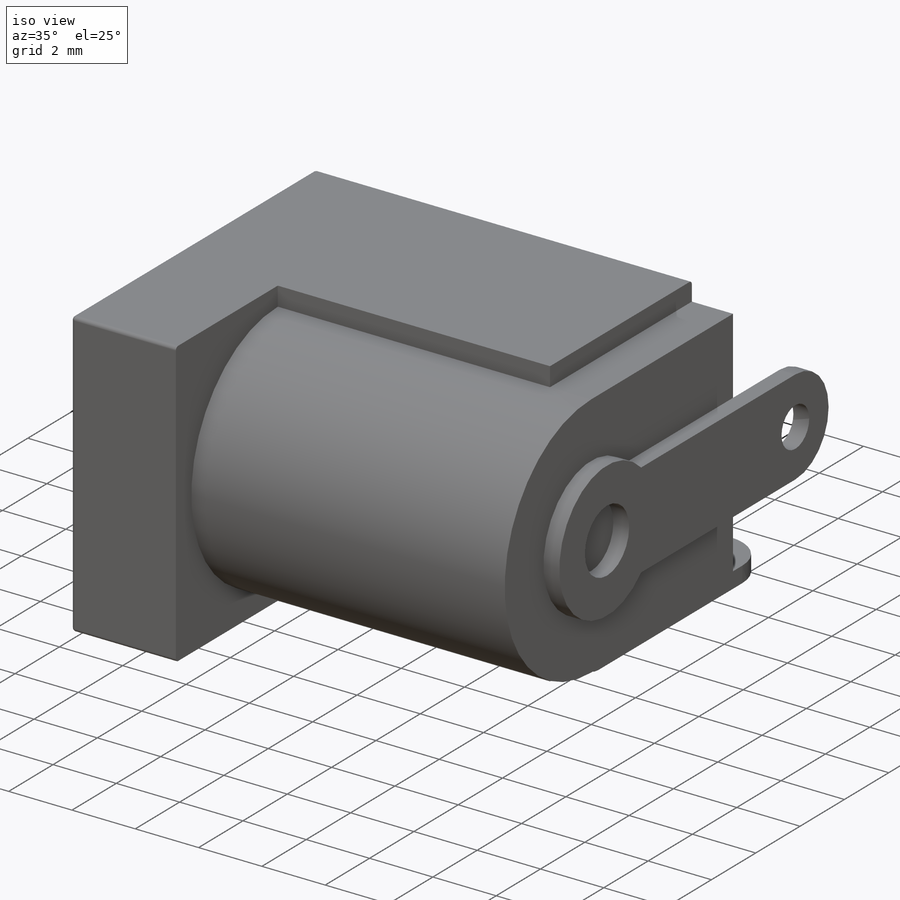
[diagram: iso view]
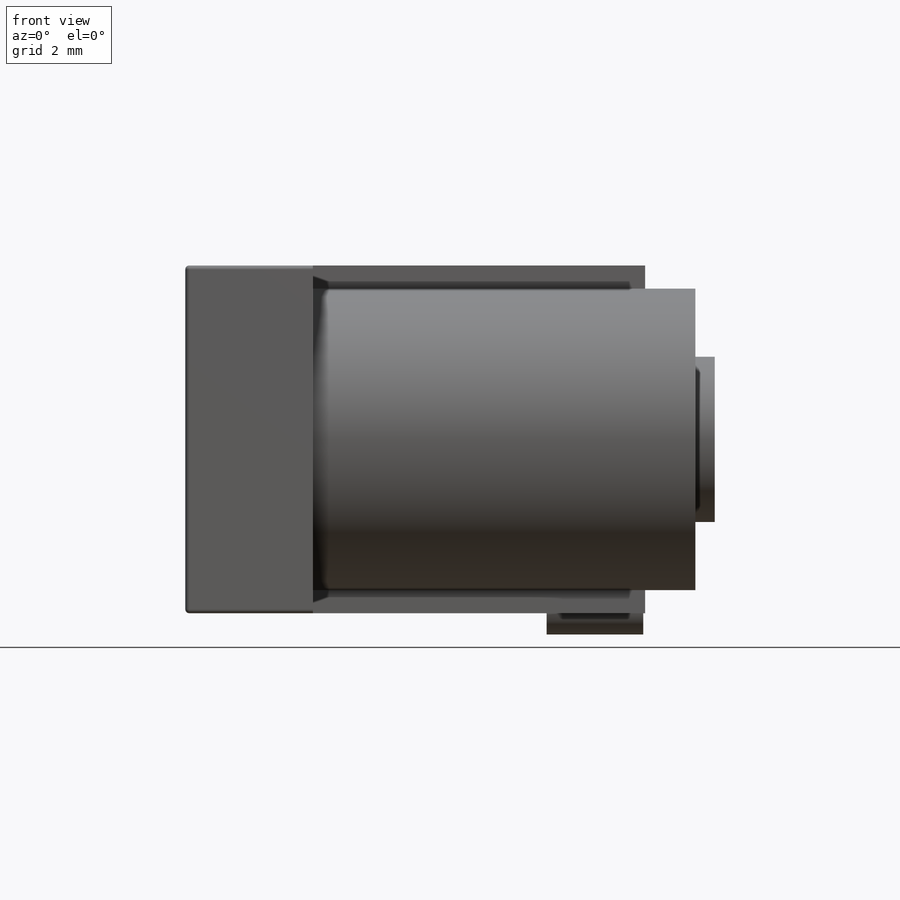
[diagram: front view]
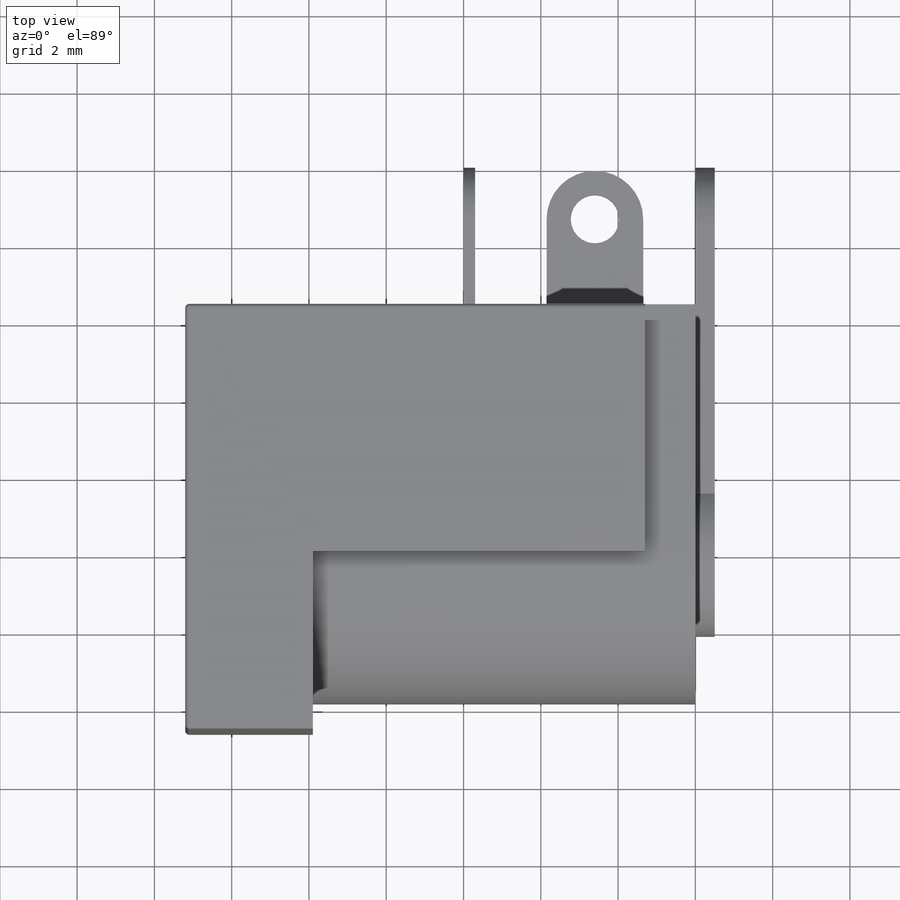
[diagram: top view]
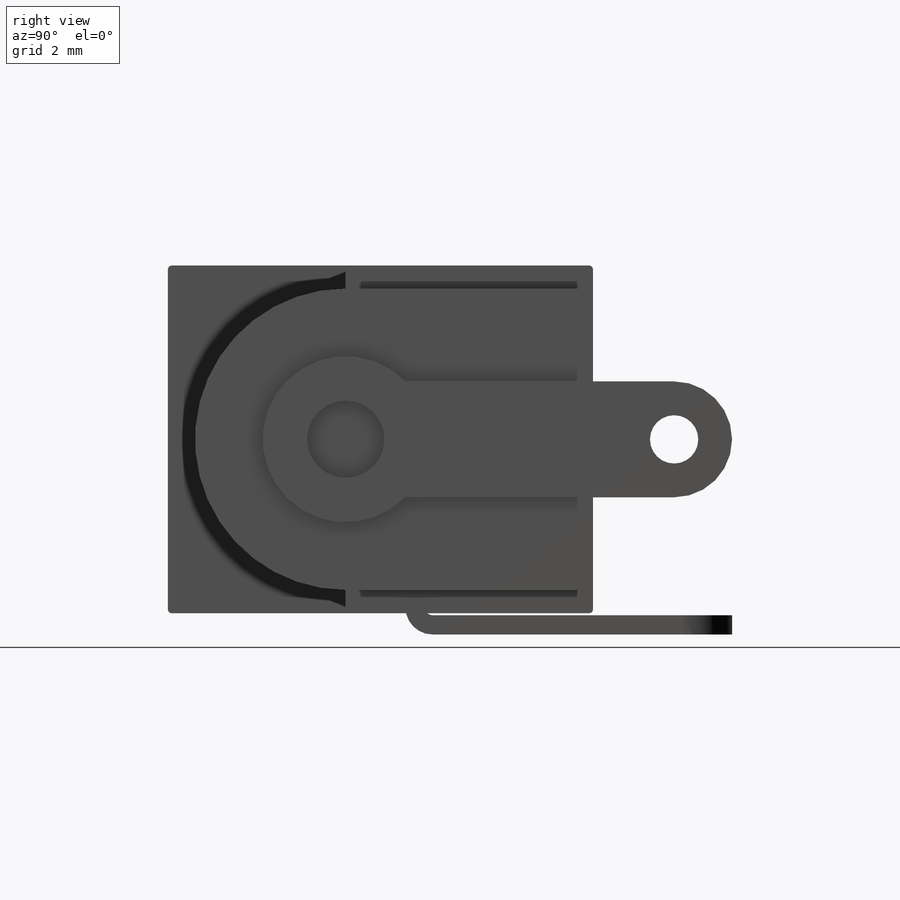
[diagram: right view]
SOLIDWORKS PART (.sldprt)
format: sldprt  version: not decoded by parser v0  size: 404,480 bytes
history: native  units: mm
features: sketch x12, extrude x7, fillet x5, cut_extrude x3, material x1, plane x1 (+13 scaffold rows collapsed)
feature tree (42):
  scaffold x13  (default folders/planes/origin — collapsed)
  material  "Material <not specified>"
  sketch  "Sketch1"  dims[D1=7.8mm D2=6.4mm]
  extrude  "Boss-Extrude2"  Depth=9.9mm
  sketch  "Sketch2"  dims[D1=9.0mm D2=11.0mm]
  extrude  "Boss-Extrude3"  Depth=3.3mm
  sketch  "Sketch4"  dims[D1=6.4mm]
  extrude  "Boss-Extrude4"  Depth=8.6mm
  sketch  "Sketch3"  dims[D1=6.3mm]
  cut_extrude  "Cut-Extrude1"  Depth=9.35mm
  sketch  "Sketch6"  dims[D1=3.0mm]
  extrude  "Boss-Extrude6"  Depth=0.1mm
  sketch  "Sketch5"  dims[D1=2.0mm]
  extrude  "Boss-Extrude5"  Depth=8.35mm
  fillet  "Fillet1"  Radius=1mm
  sketch  "Sketch7"  dims[c1.D1=7.25mm c2.D1=6.0mm c2.D5=0.2mm c2.D6=1.0mm c2.D7=5.0mm]
  sketch  "Sketch8"  dims[c1.D1=0.5mm c1.D2=3.6mm c1.D3=5.0mm c2.D1=5.05mm c3.D1=2.5mm c3.D5=0.5mm c3.D6=1.0mm c3.D7=0.2mm]
  fillet  "Fillet2"  Radius=1.25mm
  sketch  "Sketch9"  dims[D1=1.25mm]
  cut_extrude  "Cut-Extrude2"  [1 undecoded]
  sketch  "Sketch10"  dims[D1=4.3mm D4=2.0mm D2=3.0mm D3=3.6mm]
  extrude  "Boss-Extrude7"  Depth=0.5mm
  fillet  "Fillet3"  Radius=1.5mm
  sketch  "Sketch12"  dims[D1=1.25mm]
  cut_extrude  "Cut-Extrude3"  [1 undecoded]
  plane  "Plane1"  Offset=7.35mm
  sketch  "Sketch13"  dims[D1=2.5mm D2=3.6mm]
  extrude  "Boss-Extrude8"  Depth=0.3mm
  fillet  "Fillet4"  Radius=1.25mm
  fillet  "Fillet5"  Radius=0.1mm
decode coverage: 25 of 27 modeling features carry decoded parameters
note: 2 parameter values undecoded
note: suppression state not decoded; provenance and decode notes live in map.json
